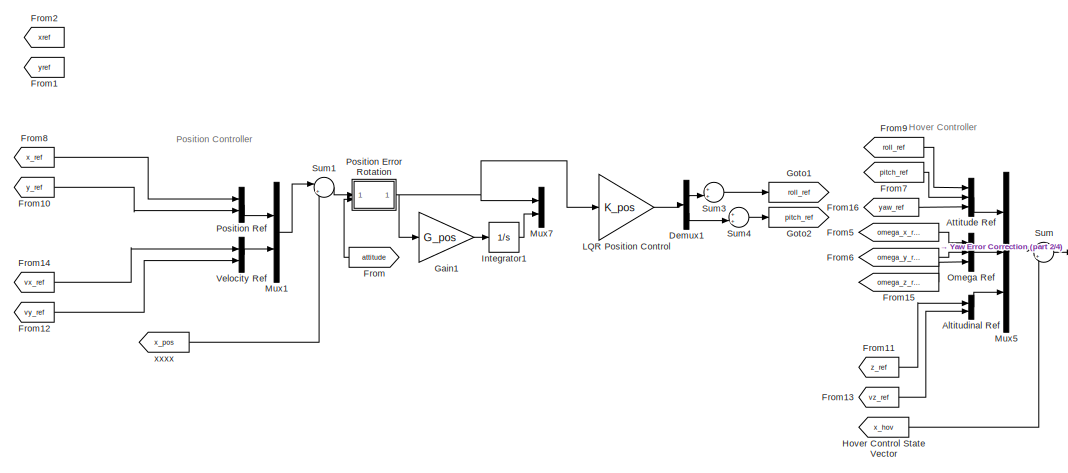
[diagram: root canvas - part 1/4, top center region]
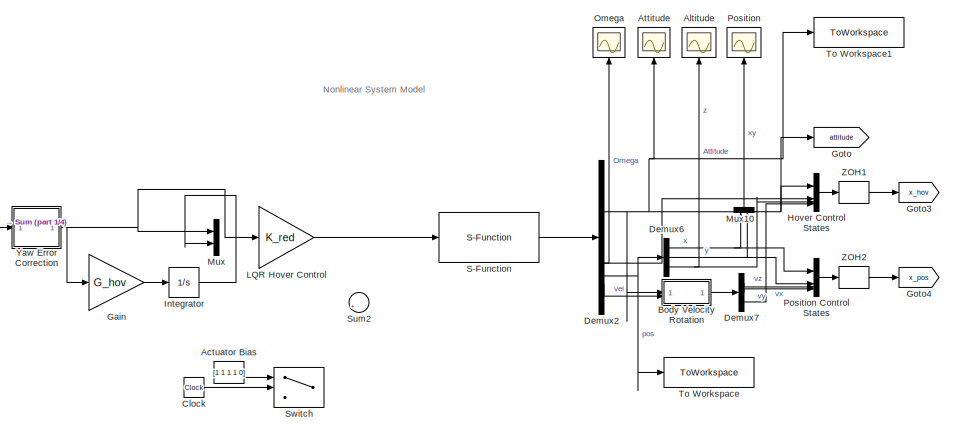
[diagram: root canvas - part 2/4, top right region]
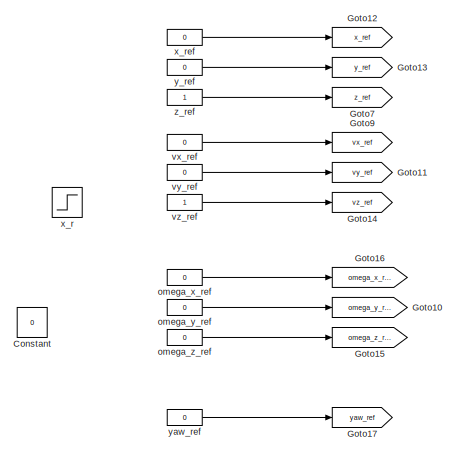
[diagram: root canvas - part 3/4, middle left region]
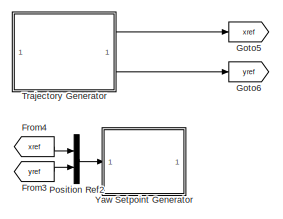
[diagram: root canvas - part 4/4, bottom center region]
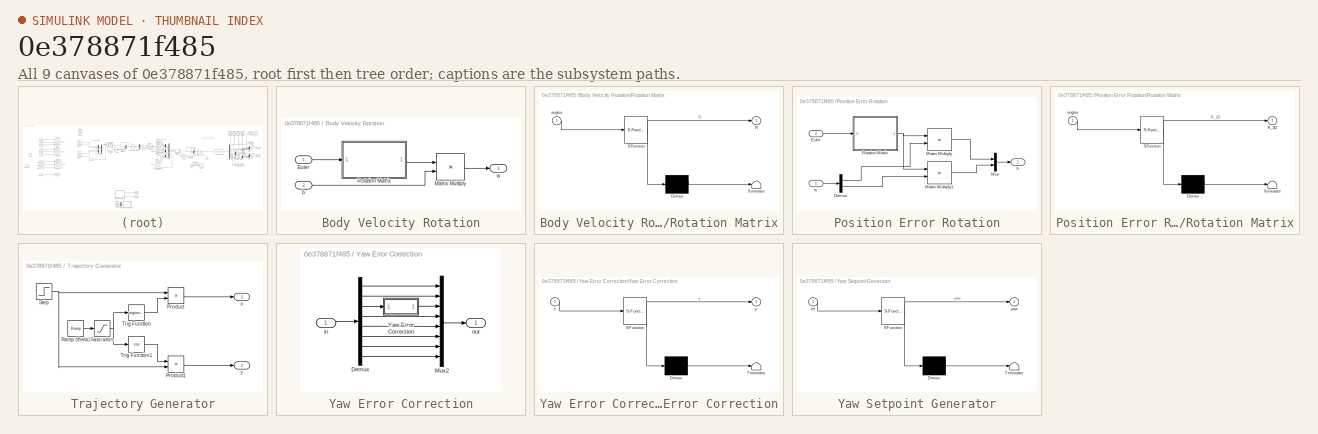
[diagram: thumbnail index - all 9 canvases of the model, root first then tree order]
MODEL slx_0e378871f485
KIND model
CONFIG AbsTol = auto
CONFIG EnableMultiTasking = off
CONFIG FixedStep = auto
CONFIG MaxStep = auto
CONFIG MinStep = auto
CONFIG RelTol = 1e-3
CONFIG SampleTimeConstraint = Unconstrained
CONFIG SolverName = VariableStepAuto
CONFIG StartTime = 0.0
CONFIG StopTime = 5
BLOCK [Constant] Actuator Bias
  Commented = on
  NameLocation = top
  Value = [1 1 1 1 0]
BLOCK [Scope] Altitude
  Floating = off
  NameLocation = top
  NumInputPorts = 1
  ScopeSpecificationString = Simulink.scopes.TimeScopeBlockCfg('CurrentConfiguration', extmgr.ConfigurationSet(extmgr.Configuration('Core','General UI',true),extmgr.Configuration('Core','Source UI',true),extmgr.Configuration('Sources','WiredSimulink',true,'DataLoggingVariableName','ScopeData1'),extmgr.Configuration('Visuals','Time Domain',true,'SerializedDisplays',{struct('MinYLimReal','-2.52323','MaxYLimReal','1.18035','YLab...<+1467ch>
BLOCK [Mux] Altitudinal Ref
  DisplayOption = bar
  Inputs = 2
BLOCK [Scope] Attitude
  Floating = off
  NameLocation = top
  NumInputPorts = 1
  ScopeSpecificationString = Simulink.scopes.TimeScopeBlockCfg('CurrentConfiguration', extmgr.ConfigurationSet(extmgr.Configuration('Core','General UI',true),extmgr.Configuration('Core','Source UI',true),extmgr.Configuration('Sources','WiredSimulink',true,'DataLoggingVariableName','ScopeData2'),extmgr.Configuration('Visuals','Time Domain',true,'SerializedDisplays',{struct('MinYLimReal','-613.42923','MaxYLimReal','155.13107','...<+1578ch>
BLOCK [Mux] Attitude Ref
  DisplayOption = bar
  Inputs = 3
  NameLocation = top
BLOCK [SubSystem] Body Velocity Rotation
BLOCK [Inport] Body Velocity Rotation/Euler
  NameLocation = top
BLOCK [Product] Body Velocity Rotation/Matrix Multiply
  Multiplication = Matrix(*)
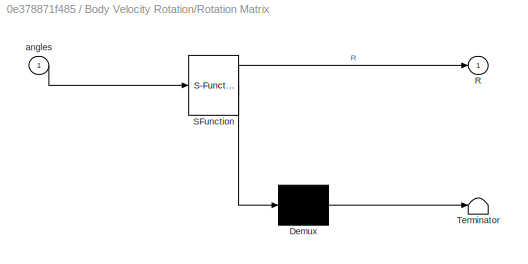
BLOCK [SubSystem] Body Velocity Rotation/Rotation Matrix
  ErrorFcn = Stateflow.Translate.translate
  NameLocation = top
  PermitHierarchicalResolution = ExplicitOnly
  SFBlockType = MATLAB Function
  TreatAsAtomicUnit = on
BLOCK [Demux] Body Velocity Rotation/Rotation Matrix/ Demux 
  Outputs = 1
BLOCK [S-Function] Body Velocity Rotation/Rotation Matrix/ SFunction 
  EnableBusSupport = on
  FunctionName = sf_sfun
  PortCounts = [1 2]
  SFcnIsStateOwnerBlock = off
  SFunctionDeploymentMode = off
  Tag = Stateflow S-Function 1
BLOCK [Terminator] Body Velocity Rotation/Rotation Matrix/ Terminator 
BLOCK [Outport] Body Velocity Rotation/Rotation Matrix/R
BLOCK [Inport] Body Velocity Rotation/Rotation Matrix/angles
BLOCK [Inport] Body Velocity Rotation/b
  Port = 2
BLOCK [Outport] Body Velocity Rotation/w
BLOCK [Clock] Clock
  Commented = on
BLOCK [Constant] Constant
  Value = 0
BLOCK [Demux] Demux1
  Outputs = 2
BLOCK [Demux] Demux2
BLOCK [Demux] Demux6
  Outputs = 3
BLOCK [Demux] Demux7
  Outputs = 3
BLOCK [From] From
  GotoTag = attitude
  NameLocation = top
  TagVisibility = global
BLOCK [From] From1
  GotoTag = yref
BLOCK [From] From10
  GotoTag = y_ref
  TagVisibility = global
BLOCK [From] From11
  GotoTag = z_ref
  TagVisibility = global
BLOCK [From] From12
  GotoTag = vy_ref
  TagVisibility = global
BLOCK [From] From13
  GotoTag = vz_ref
  TagVisibility = global
BLOCK [From] From14
  GotoTag = vx_ref
  TagVisibility = global
BLOCK [From] From15
  GotoTag = omega_z_ref
  TagVisibility = global
BLOCK [From] From16
  GotoTag = yaw_ref
  TagVisibility = global
BLOCK [From] From2
  GotoTag = xref
BLOCK [From] From3
  Commented = on
  GotoTag = yref
  TagVisibility = global
BLOCK [From] From4
  Commented = on
  GotoTag = xref
  TagVisibility = global
BLOCK [From] From5
  GotoTag = omega_x_ref
  TagVisibility = global
BLOCK [From] From6
  GotoTag = omega_y_ref
  TagVisibility = global
BLOCK [From] From7
  GotoTag = pitch_ref
  TagVisibility = global
BLOCK [From] From8
  GotoTag = x_ref
  TagVisibility = global
BLOCK [From] From9
  GotoTag = roll_ref
  TagVisibility = global
BLOCK [Gain] Gain
  Gain = G_hov
  Multiplication = Matrix(K*u)
BLOCK [Gain] Gain1
  Gain = G_pos
  Multiplication = Matrix(K*u)
BLOCK [Goto] Goto
  GotoTag = attitude
  TagVisibility = global
BLOCK [Goto] Goto1
  GotoTag = roll_ref
  TagVisibility = global
BLOCK [Goto] Goto10
  GotoTag = omega_y_ref
  TagVisibility = global
BLOCK [Goto] Goto11
  GotoTag = vy_ref
  TagVisibility = global
BLOCK [Goto] Goto12
  GotoTag = x_ref
  TagVisibility = global
BLOCK [Goto] Goto13
  GotoTag = y_ref
  TagVisibility = global
BLOCK [Goto] Goto14
  GotoTag = vz_ref
  TagVisibility = global
BLOCK [Goto] Goto15
  GotoTag = omega_z_ref
  TagVisibility = global
BLOCK [Goto] Goto16
  GotoTag = omega_x_ref
  TagVisibility = global
BLOCK [Goto] Goto17
  GotoTag = yaw_ref
  TagVisibility = global
BLOCK [Goto] Goto2
  GotoTag = pitch_ref
  TagVisibility = global
BLOCK [Goto] Goto3
  GotoTag = x_hov
  TagVisibility = global
BLOCK [Goto] Goto4
  GotoTag = x_pos
  TagVisibility = global
BLOCK [Goto] Goto5
  Commented = on
  GotoTag = xref
  TagVisibility = global
BLOCK [Goto] Goto6
  Commented = on
  GotoTag = yref
  TagVisibility = global
BLOCK [Goto] Goto7
  GotoTag = z_ref
  TagVisibility = global
BLOCK [Goto] Goto9
  GotoTag = vx_ref
  TagVisibility = global
BLOCK [From] Hover Control State Vector
  GotoTag = x_hov
  NameLocation = top
  TagVisibility = global
BLOCK [Mux] Hover Control States
  DisplayOption = bar
BLOCK [Integrator] Integrator
  LimitOutput = on
  LowerSaturationLimit = 0
  UpperSaturationLimit = 1
BLOCK [Integrator] Integrator1
  LimitOutput = on
  LowerSaturationLimit = -0.4
  UpperSaturationLimit = 0.4
BLOCK [Gain] LQR Hover Control
  Gain = K_red
  Multiplication = Matrix(K*u)
  NameLocation = top
BLOCK [Gain] LQR Position Control
  Gain = K_pos
  Multiplication = Matrix(K*u)
  NameLocation = top
BLOCK [Mux] Mux
  DisplayOption = bar
  Inputs = 2
BLOCK [Mux] Mux1
  DisplayOption = bar
  Inputs = 2
BLOCK [Mux] Mux10
  DisplayOption = bar
  Inputs = 2
  NameLocation = right
BLOCK [Mux] Mux5
  DisplayOption = bar
  Inputs = 3
BLOCK [Mux] Mux7
  DisplayOption = bar
  Inputs = 2
BLOCK [Scope] Omega
  Floating = off
  NameLocation = top
  NumInputPorts = 1
  ScopeSpecificationString = Simulink.scopes.TimeScopeBlockCfg('CurrentConfiguration', extmgr.ConfigurationSet(extmgr.Configuration('Core','General UI',true),extmgr.Configuration('Core','Source UI',true),extmgr.Configuration('Sources','WiredSimulink',true,'DataLoggingVariableName','ScopeData3'),extmgr.Configuration('Visuals','Time Domain',true,'SerializedDisplays',{struct('MinYLimReal','-1189.71005','MaxYLimReal','1192.50186'...<+1483ch>
BLOCK [Mux] Omega Ref
  DisplayOption = bar
  Inputs = 3
BLOCK [Scope] Position
  Floating = off
  NameLocation = top
  NumInputPorts = 1
  ScopeSpecificationString = Simulink.scopes.TimeScopeBlockCfg('CurrentConfiguration', extmgr.ConfigurationSet(extmgr.Configuration('Core','General UI',true),extmgr.Configuration('Core','Source UI',true),extmgr.Configuration('Sources','WiredSimulink',true),extmgr.Configuration('Visuals','Time Domain',true,'SerializedDisplays',{struct('MinYLimReal','-0.15429','MaxYLimReal','1.30131','YLabelReal','','MinYLimMag','0.00000','MaxY...<+1429ch>
BLOCK [Mux] Position Control States
  DisplayOption = bar
BLOCK [SubSystem] Position Error Rotation
  NameLocation = top
BLOCK [Demux] Position Error Rotation/Demux
  Outputs = 2
BLOCK [Inport] Position Error Rotation/Euler
  NameLocation = top
  Port = 2
BLOCK [Product] Position Error Rotation/Matrix Multiply
  Multiplication = Matrix(*)
BLOCK [Product] Position Error Rotation/Matrix Multiply1
  Multiplication = Matrix(*)
BLOCK [Mux] Position Error Rotation/Mux
  DisplayOption = bar
  Inputs = 2
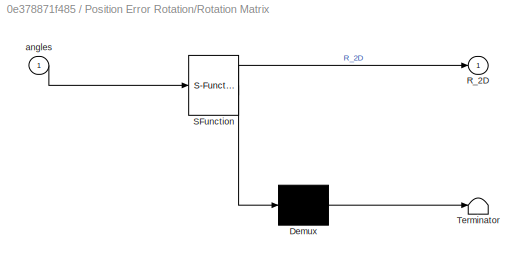
BLOCK [SubSystem] Position Error Rotation/Rotation Matrix
  ErrorFcn = Stateflow.Translate.translate
  NameLocation = top
  PermitHierarchicalResolution = ExplicitOnly
  SFBlockType = MATLAB Function
  TreatAsAtomicUnit = on
BLOCK [Demux] Position Error Rotation/Rotation Matrix/ Demux 
  Outputs = 1
BLOCK [S-Function] Position Error Rotation/Rotation Matrix/ SFunction 
  EnableBusSupport = on
  FunctionName = sf_sfun
  PortCounts = [1 2]
  SFcnIsStateOwnerBlock = off
  SFunctionDeploymentMode = off
  Tag = Stateflow S-Function 3
BLOCK [Terminator] Position Error Rotation/Rotation Matrix/ Terminator 
BLOCK [Outport] Position Error Rotation/Rotation Matrix/R_2D
BLOCK [Inport] Position Error Rotation/Rotation Matrix/angles
BLOCK [Outport] Position Error Rotation/b
BLOCK [Inport] Position Error Rotation/w
BLOCK [Mux] Position Ref
  DisplayOption = bar
  Inputs = 2
  NameLocation = top
BLOCK [Mux] Position Ref2
  Commented = on
  DisplayOption = bar
  Inputs = 2
  NameLocation = top
BLOCK [S-Function] S-Function
  EnableBusSupport = off
  FunctionName = nonlin_func_call
  SFcnIsStateOwnerBlock = off
  SFunctionDeploymentMode = off
BLOCK [Sum] Sum
  Inputs = |+-
BLOCK [Sum] Sum1
  Inputs = |+-
BLOCK [Sum] Sum2
  Inputs = |++
BLOCK [Sum] Sum3
  Inputs = ++|
BLOCK [Sum] Sum4
  Inputs = ++|
BLOCK [Switch] Switch
  Commented = on
  Criteria = u2 > Threshold
  InputSameDT = off
  SaturateOnIntegerOverflow = off
  Threshold = 20
BLOCK [ToWorkspace] To Workspace
  FixptAsFi = on
  MaxDataPoints = inf
  SampleTime = -1
  SaveFormat = Timeseries
  VariableName = pos
BLOCK [ToWorkspace] To Workspace1
  FixptAsFi = on
  MaxDataPoints = inf
  SampleTime = -1
  SaveFormat = Timeseries
  VariableName = att
BLOCK [SubSystem] Trajectory Generator
  Commented = on
  NameLocation = top
BLOCK [Product] Trajectory Generator/Product
  RndMeth = Zero
BLOCK [Product] Trajectory Generator/Product1
  RndMeth = Zero
BLOCK [Reference] Trajectory Generator/Ramp (theta)  REF=simulink/Sources/Ramp
  SourceBlock = simulink/Sources/Ramp
  SourceType = Ramp
BLOCK [Saturate] Trajectory Generator/Saturation
  LowerLimit = 0
  UpperLimit = 2 * pi
BLOCK [Step] Trajectory Generator/Step
  SampleTime = 0
  Time = 20
BLOCK [Trigonometry] Trajectory Generator/Trig Function
BLOCK [Trigonometry] Trajectory Generator/Trig Function1
  Operator = cos
BLOCK [Outport] Trajectory Generator/x
BLOCK [Outport] Trajectory Generator/y
  Port = 2
BLOCK [Mux] Velocity Ref
  DisplayOption = bar
  Inputs = 2
BLOCK [SubSystem] Yaw Error Correction
  NameLocation = top
BLOCK [Demux] Yaw Error Correction/Demux
  Outputs = 8
BLOCK [Mux] Yaw Error Correction/Mux2
  DisplayOption = bar
  Inputs = 8
BLOCK [SubSystem] Yaw Error Correction/Yaw Error Correction
  ErrorFcn = Stateflow.Translate.translate
  PermitHierarchicalResolution = ExplicitOnly
  SFBlockType = MATLAB Function
  TreatAsAtomicUnit = on
BLOCK [Demux] Yaw Error Correction/Yaw Error Correction/ Demux 
  Outputs = 1
BLOCK [S-Function] Yaw Error Correction/Yaw Error Correction/ SFunction 
  EnableBusSupport = on
  FunctionName = sf_sfun
  PortCounts = [1 2]
  SFcnIsStateOwnerBlock = off
  SFunctionDeploymentMode = off
  Tag = Stateflow S-Function 4
BLOCK [Terminator] Yaw Error Correction/Yaw Error Correction/ Terminator 
BLOCK [Inport] Yaw Error Correction/Yaw Error Correction/e
BLOCK [Outport] Yaw Error Correction/Yaw Error Correction/y
BLOCK [Inport] Yaw Error Correction/in
BLOCK [Outport] Yaw Error Correction/out
BLOCK [SubSystem] Yaw Setpoint Generator
  Commented = on
  ErrorFcn = Stateflow.Translate.translate
  NameLocation = top
  PermitHierarchicalResolution = ExplicitOnly
  SFBlockType = MATLAB Function
  TreatAsAtomicUnit = on
BLOCK [Demux] Yaw Setpoint Generator/ Demux 
  Outputs = 1
BLOCK [S-Function] Yaw Setpoint Generator/ SFunction 
  EnableBusSupport = on
  FunctionName = sf_sfun
  PortCounts = [1 2]
  SFcnIsStateOwnerBlock = off
  SFunctionDeploymentMode = off
  Tag = Stateflow S-Function 2
BLOCK [Terminator] Yaw Setpoint Generator/ Terminator 
BLOCK [Inport] Yaw Setpoint Generator/ref
BLOCK [Outport] Yaw Setpoint Generator/yaw
BLOCK [ZeroOrderHold] ZOH1
  SampleTime = 0.005
BLOCK [ZeroOrderHold] ZOH2
  SampleTime = 0.005
BLOCK [Constant] omega_x_ref
  NameLocation = left
  Value = 0
BLOCK [Constant] omega_y_ref
  NameLocation = left
  Value = 0
BLOCK [Constant] omega_z_ref
  NameLocation = left
  Value = 0
BLOCK [Constant] vx_ref
  NameLocation = left
  Value = 0
BLOCK [Constant] vy_ref
  NameLocation = left
  Value = 0
BLOCK [Constant] vz_ref
  NameLocation = left
BLOCK [Step] x_r
  NameLocation = left
  SampleTime = 0
  Time = 10
BLOCK [Constant] x_ref
  NameLocation = left
  Value = 0
BLOCK [From] xxxx
  GotoTag = x_pos
  NameLocation = top
  TagVisibility = global
BLOCK [Constant] y_ref
  NameLocation = left
  Value = 0
BLOCK [Constant] yaw_ref
  NameLocation = left
  Value = 0
BLOCK [Constant] z_ref
  NameLocation = left
ANNOTATION (root): Hover Controller
ANNOTATION (root): Nonlinear System Model
ANNOTATION (root): Position Controller
LINE Actuator Bias:1 -> Switch:1
LINE Altitudinal Ref:1 -> Mux5:3
LINE Attitude Ref:1 -> Mux5:1
LINE Body Velocity Rotation/Euler:1 -> Body Velocity Rotation/Rotation Matrix:1
LINE Body Velocity Rotation/Matrix Multiply:1 -> Body Velocity Rotation/w:1
LINE Body Velocity Rotation/Rotation Matrix:1 -> Body Velocity Rotation/Matrix Multiply:1
LINE Body Velocity Rotation/b:1 -> Body Velocity Rotation/Matrix Multiply:2
LINE Body Velocity Rotation:1 -> Demux7:1
LINE Clock:1 -> Switch:2
LINE Demux1:1 -> Sum3:2
LINE Demux1:2 -> Sum4:2
NET Demux2:1 -> Attitude:1, Body Velocity Rotation:1, Goto:1, Hover Control States:1, To Workspace1:1
NET Demux2:2 -> Hover Control States:2, Omega:1
NET Demux2:3 -> Demux6:1, To Workspace:1
LINE Demux2:4 -> Body Velocity Rotation:2
NET Demux6:1 -> Mux10:1, Position Control States:1
NET Demux6:2 -> Mux10:2, Position Control States:2
NET Demux6:3 -> Altitude:1, Hover Control States:3
LINE Demux7:1 -> Position Control States:3
LINE Demux7:2 -> Position Control States:4
LINE Demux7:3 -> Hover Control States:4
LINE From10:1 -> Position Ref:2
LINE From11:1 -> Altitudinal Ref:1
LINE From12:1 -> Velocity Ref:2
LINE From13:1 -> Altitudinal Ref:2
LINE From14:1 -> Velocity Ref:1
LINE From15:1 -> Omega Ref:3
LINE From16:1 -> Attitude Ref:3
LINE From3:1 -> Position Ref2:2
LINE From4:1 -> Position Ref2:1
LINE From5:1 -> Omega Ref:1
LINE From6:1 -> Omega Ref:2
LINE From7:1 -> Attitude Ref:2
LINE From8:1 -> Position Ref:1
LINE From9:1 -> Attitude Ref:1
LINE From:1 -> Position Error Rotation:2
LINE Gain1:1 -> Integrator1:1
LINE Gain:1 -> Integrator:1
LINE Hover Control State Vector:1 -> Sum:2
LINE Hover Control States:1 -> ZOH1:1
LINE Integrator1:1 -> Mux7:2
LINE Integrator:1 -> Mux:2
LINE LQR Hover Control:1 -> S-Function:1
LINE LQR Position Control:1 -> Demux1:1
LINE Mux10:1 -> Position:1
LINE Mux1:1 -> Sum1:1
LINE Mux5:1 -> Sum:1
LINE Omega Ref:1 -> Mux5:2
LINE Position Control States:1 -> ZOH2:1
LINE Position Error Rotation/Demux:1 -> Position Error Rotation/Matrix Multiply:2
LINE Position Error Rotation/Demux:2 -> Position Error Rotation/Matrix Multiply1:2
LINE Position Error Rotation/Euler:1 -> Position Error Rotation/Rotation Matrix:1
LINE Position Error Rotation/Matrix Multiply1:1 -> Position Error Rotation/Mux:2
LINE Position Error Rotation/Matrix Multiply:1 -> Position Error Rotation/Mux:1
LINE Position Error Rotation/Mux:1 -> Position Error Rotation/b:1
NET Position Error Rotation/Rotation Matrix:1 -> Position Error Rotation/Matrix Multiply1:1, Position Error Rotation/Matrix Multiply:1
LINE Position Error Rotation/w:1 -> Position Error Rotation/Demux:1
NET Position Error Rotation:1 -> Gain1:1, LQR Position Control:1, Mux7:1
LINE Position Ref2:1 -> Yaw Setpoint Generator:1
LINE Position Ref:1 -> Mux1:1
LINE S-Function:1 -> Demux2:1
LINE Sum1:1 -> Position Error Rotation:1
LINE Sum3:1 -> Goto1:1
LINE Sum4:1 -> Goto2:1
LINE Sum:1 -> Yaw Error Correction:1
LINE Trajectory Generator/Product1:1 -> Trajectory Generator/y:1
LINE Trajectory Generator/Product:1 -> Trajectory Generator/x:1
LINE Trajectory Generator/Ramp (theta):1 -> Trajectory Generator/Saturation:1
NET Trajectory Generator/Saturation:1 -> Trajectory Generator/Trig Function1:1, Trajectory Generator/Trig Function:1
NET Trajectory Generator/Step:1 -> Trajectory Generator/Product1:2, Trajectory Generator/Product:1
LINE Trajectory Generator/Trig Function1:1 -> Trajectory Generator/Product1:1
LINE Trajectory Generator/Trig Function:1 -> Trajectory Generator/Product:2
LINE Trajectory Generator:1 -> Goto5:1
LINE Trajectory Generator:2 -> Goto6:1
LINE Velocity Ref:1 -> Mux1:2
LINE Yaw Error Correction/Demux:1 -> Yaw Error Correction/Mux2:1
LINE Yaw Error Correction/Demux:2 -> Yaw Error Correction/Mux2:2
LINE Yaw Error Correction/Demux:3 -> Yaw Error Correction/Yaw Error Correction:1
LINE Yaw Error Correction/Demux:4 -> Yaw Error Correction/Mux2:4
LINE Yaw Error Correction/Demux:5 -> Yaw Error Correction/Mux2:5
LINE Yaw Error Correction/Demux:6 -> Yaw Error Correction/Mux2:6
LINE Yaw Error Correction/Demux:7 -> Yaw Error Correction/Mux2:7
LINE Yaw Error Correction/Demux:8 -> Yaw Error Correction/Mux2:8
LINE Yaw Error Correction/Mux2:1 -> Yaw Error Correction/out:1
LINE Yaw Error Correction/Yaw Error Correction:1 -> Yaw Error Correction/Mux2:3
LINE Yaw Error Correction/in:1 -> Yaw Error Correction/Demux:1
NET Yaw Error Correction:1 -> Gain:1, LQR Hover Control:1, Mux:1
LINE ZOH1:1 -> Goto3:1
LINE ZOH2:1 -> Goto4:1
LINE omega_x_ref:1 -> Goto16:1
LINE omega_y_ref:1 -> Goto10:1
LINE omega_z_ref:1 -> Goto15:1
LINE vx_ref:1 -> Goto9:1
LINE vy_ref:1 -> Goto11:1
LINE vz_ref:1 -> Goto14:1
LINE x_ref:1 -> Goto12:1
LINE xxxx:1 -> Sum1:2
LINE y_ref:1 -> Goto13:1
LINE yaw_ref:1 -> Goto17:1
LINE z_ref:1 -> Goto7:1
note: NET lines group one-source signal fan-out (src -> all destinations, sorted); 1:1 wires keep LINE
CHART Yaw Setpoint
Generator states=1 transitions=1
  STATE_LABEL 'eML_blk_kernel()'
  STATE_LABEL 'SCRIPT:\nfunction yaw = yaw_setpoint(ref)\n\npersistent last_ref\n\nif isempty(last_ref)\n    last_ref = ref;\nend\n\ndx = ref(1) - last_ref(1);\ndy = ref(2) - last_ref(2);\n\nlast_ref = ref;\n\nyaw = atan2( dy, dx );'
CHART Position Error
Rotation/Rotation Matrix states=1 transitions=1
  STATE_LABEL 'eML_blk_kernel()'
  STATE_LABEL 'SCRIPT:\nfunction R_2D = world_to_body( angles )\n\n    p = 0;\n    q = 0;\n    u = angles(3);\n    \n    R_2D = [ cos(q)*cos(u),                         cos(q)*sin(u),                        ;\n             cos(u)*sin(p)*sin(q) - cos(p)*sin(u),  cos(p)*cos(u) + sin(p)*sin(q)*sin(u) ];\n         \n'
CHART Yaw Error
Correction/Yaw Error
Correction states=1 transitions=1
  STATE_LABEL 'eML_blk_kernel()'
  STATE_LABEL 'SCRIPT:\nfunction y = fcn(e)\n    \n    % Correct yaw error\n    if( e > pi )\n        e = e - 2 * pi;\n    end\n    \n    y = e;\n    \nend'
CHART Body Velocity
Rotation/Rotation Matrix states=1 transitions=1
  STATE_LABEL 'eML_blk_kernel()'
  STATE_LABEL 'SCRIPT:\nfunction R = body_to_world( angles )\n\n    p = angles(1);\n    q = angles(2);\n    u = angles(3);\n    \n\n    R = [cos(q)*cos(u), sin(p)*sin(q)*cos(u)-cos(p)*sin(u), cos(p)*sin(q)*cos(u)+sin(p)*sin(u) ;\n         cos(q)*sin(u), sin(p)*sin(q)*sin(u)+cos(p)*cos(u), cos(p)*sin(q)*sin(u)-sin(p)*cos(u) ;\n         -sin(q),       sin(p)*cos(q),                      cos(p)*cos(q)                     ];\n...<+6ch>'
CHART  states=0 transitions=0
CHART  states=0 transitions=0
CHART  states=0 transitions=0
CHART  states=0 transitions=0
